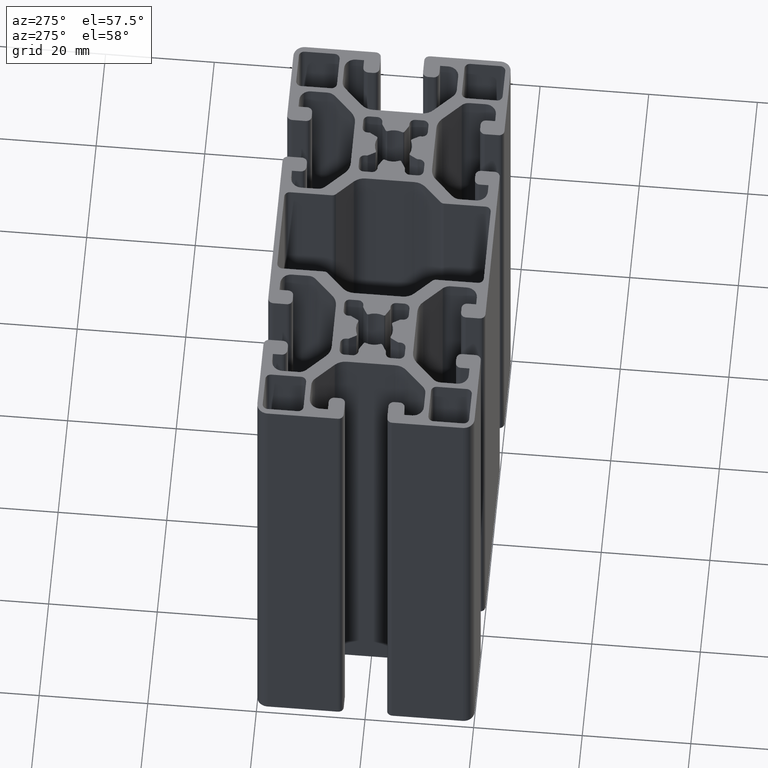
[diagram: clean part render]
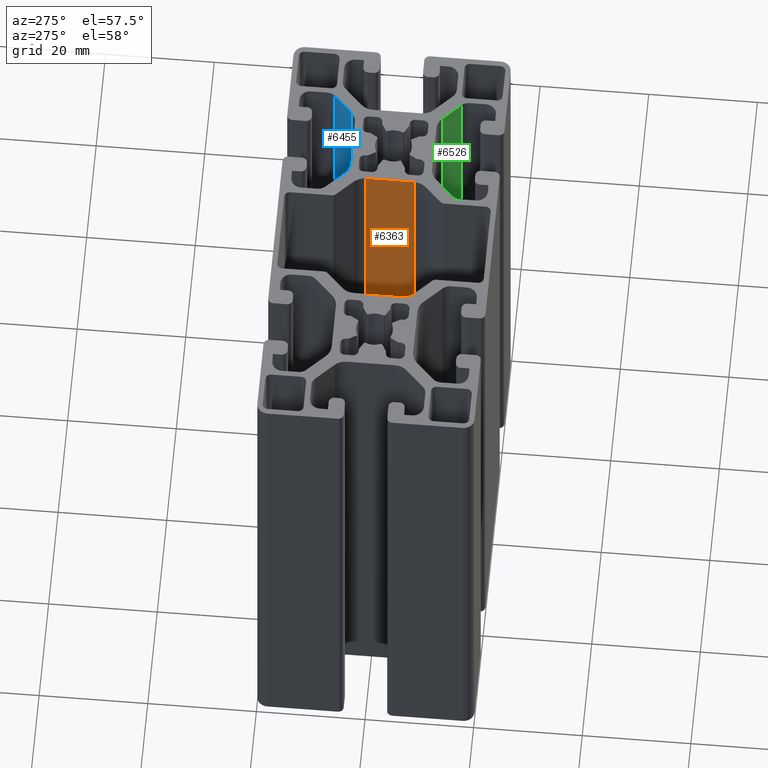
[diagram: same view with three faces highlighted in distinct colors, each labeled with its STEP entity id]
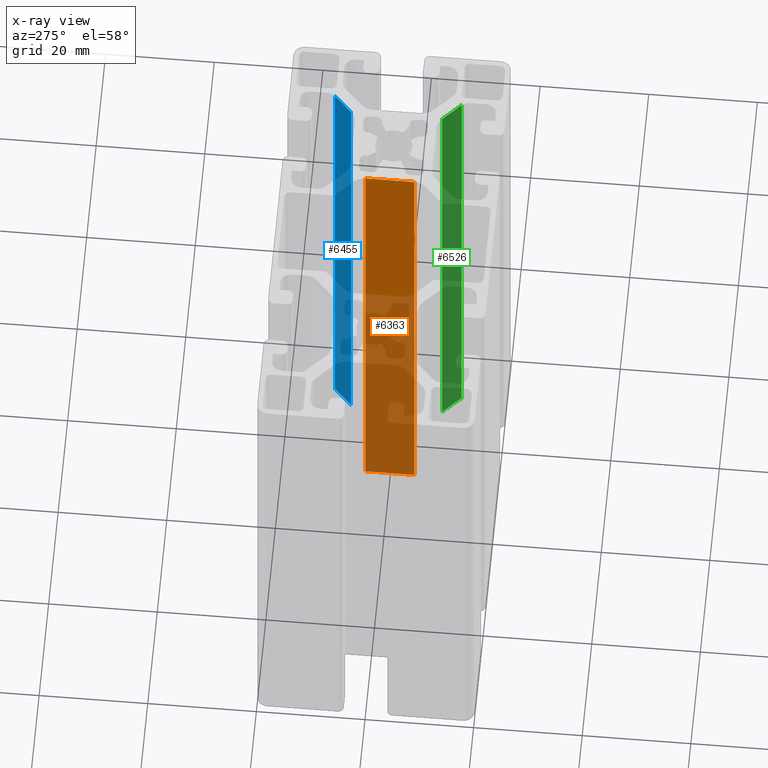
[diagram: x-ray of the same camera — body ghosted, the three highlighted faces saturated]
A machine part, auxiliary view with three faces highlighted in distinct colors.
The next image is the same camera in x-ray (body ghosted, the three faces saturated) — at least one of them is partly hidden behind the body in this view.
Their STEP definitions:

[orange] entity #6363 — the highlighted planar face has unit normal (1, 0, 0).
#543=FACE_OUTER_BOUND('',#877,.T.);
#877=EDGE_LOOP('',(#4235,#4236,#4237,#4238));
#1235=LINE('',#9424,#1895);
#1236=LINE('',#9427,#1896);
#1237=LINE('',#9429,#1897);
#1238=LINE('',#9430,#1898);
#1895=VECTOR('',#7421,100.);
#1896=VECTOR('',#7424,8.97918471982873);
#1897=VECTOR('',#7425,8.97918471982873);
#1898=VECTOR('',#7426,100.);
#2555=VERTEX_POINT('',#9420);
#2556=VERTEX_POINT('',#9422);
#2557=VERTEX_POINT('',#9426);
#2558=VERTEX_POINT('',#9428);
#3229=EDGE_CURVE('',#2556,#2555,#1235,.T.);
#3230=EDGE_CURVE('',#2555,#2557,#1236,.T.);
#3231=EDGE_CURVE('',#2558,#2556,#1237,.T.);
#3232=EDGE_CURVE('',#2558,#2557,#1238,.T.);
#4235=ORIENTED_EDGE('',*,*,#3230,.F.);
#4236=ORIENTED_EDGE('',*,*,#3229,.F.);
#4237=ORIENTED_EDGE('',*,*,#3231,.F.);
#4238=ORIENTED_EDGE('',*,*,#3232,.T.);
#6192=PLANE('',#6709);
#6363=ADVANCED_FACE('',(#543),#6192,.F.);
#6709=AXIS2_PLACEMENT_3D('',#9425,#7422,#7423);
#7421=DIRECTION('',(0.,0.,1.));
#7422=DIRECTION('center_axis',(1.,4.94576315898013E-16,0.));
#7423=DIRECTION('ref_axis',(0.,0.,-1.));
#7424=DIRECTION('',(4.94576315898013E-16,-1.,0.));
#7425=DIRECTION('',(-4.94576315898013E-16,1.,0.));
#7426=DIRECTION('',(0.,0.,1.));
#9420=CARTESIAN_POINT('',(12.5,4.48959235991437,100.));
#9422=CARTESIAN_POINT('',(12.5,4.48959235991437,0.));
#9424=CARTESIAN_POINT('',(12.5,4.48959235991437,0.));
#9425=CARTESIAN_POINT('Origin',(12.5,4.48959235991437,0.));
#9426=CARTESIAN_POINT('',(12.5,-4.48959235991437,100.));
#9427=CARTESIAN_POINT('',(12.5,2.24479617995719,100.));
#9428=CARTESIAN_POINT('',(12.5,-4.48959235991437,0.));
#9429=CARTESIAN_POINT('',(12.5,2.24479617995719,0.));
#9430=CARTESIAN_POINT('',(12.5,-4.48959235991437,0.));

[blue] entity #6455 — the highlighted planar face has unit normal (0.7071, -0.7071, 0).
#635=FACE_OUTER_BOUND('',#969,.T.);
#969=EDGE_LOOP('',(#4603,#4604,#4605,#4606));
#1424=LINE('',#9984,#2084);
#1425=LINE('',#9988,#2085);
#1426=LINE('',#9990,#2086);
#1427=LINE('',#9991,#2087);
#2084=VECTOR('',#7972,100.);
#2085=VECTOR('',#7977,4.67157287525383);
#2086=VECTOR('',#7978,100.);
#2087=VECTOR('',#7979,4.67157287525383);
#2745=VERTEX_POINT('',#9981);
#2746=VERTEX_POINT('',#9983);
#2747=VERTEX_POINT('',#9987);
#2748=VERTEX_POINT('',#9989);
#3507=EDGE_CURVE('',#2746,#2745,#1424,.T.);
#3509=EDGE_CURVE('',#2747,#2745,#1425,.T.);
#3510=EDGE_CURVE('',#2748,#2747,#1426,.T.);
#3511=EDGE_CURVE('',#2746,#2748,#1427,.T.);
#4603=ORIENTED_EDGE('',*,*,#3509,.F.);
#4604=ORIENTED_EDGE('',*,*,#3510,.F.);
#4605=ORIENTED_EDGE('',*,*,#3511,.F.);
#4606=ORIENTED_EDGE('',*,*,#3507,.T.);
#6239=PLANE('',#6891);
#6455=ADVANCED_FACE('',(#635),#6239,.F.);
#6891=AXIS2_PLACEMENT_3D('',#9986,#7975,#7976);
#7972=DIRECTION('',(0.,0.,1.));
#7975=DIRECTION('center_axis',(0.707106781186549,-0.707106781186546,0.));
#7976=DIRECTION('ref_axis',(0.,0.,-1.));
#7977=DIRECTION('',(-0.707106781186546,-0.707106781186549,0.));
#7978=DIRECTION('',(0.,0.,1.));
#7979=DIRECTION('',(0.707106781186546,0.707106781186549,0.));
#9981=CARTESIAN_POINT('',(26.610912703474,8.37867965644034,100.));
#9983=CARTESIAN_POINT('',(26.610912703474,8.37867965644034,0.));
#9984=CARTESIAN_POINT('',(26.610912703474,8.37867965644034,0.));
#9986=CARTESIAN_POINT('Origin',(29.9142135623731,11.6819805153395,0.));
#9987=CARTESIAN_POINT('',(29.9142135623731,11.6819805153395,100.));
#9988=CARTESIAN_POINT('',(19.515165042945,1.28293199591131,100.));
#9989=CARTESIAN_POINT('',(29.9142135623731,11.6819805153395,0.));
#9990=CARTESIAN_POINT('',(29.9142135623731,11.6819805153395,0.));
#9991=CARTESIAN_POINT('',(19.515165042945,1.28293199591131,0.));

[green] entity #6526 — the highlighted planar face has unit normal (0.7071, 0.7071, 0).
#706=FACE_OUTER_BOUND('',#1040,.T.);
#1040=EDGE_LOOP('',(#4887,#4888,#4889,#4890));
#1524=LINE('',#10279,#2184);
#1572=LINE('',#10419,#2232);
#1573=LINE('',#10422,#2233);
#1574=LINE('',#10423,#2234);
#2184=VECTOR('',#8262,100.);
#2232=VECTOR('',#8398,100.);
#2233=VECTOR('',#8403,4.67157287525381);
#2234=VECTOR('',#8404,4.67157287525381);
#2844=VERTEX_POINT('',#10273);
#2846=VERTEX_POINT('',#10277);
#2893=VERTEX_POINT('',#10416);
#2894=VERTEX_POINT('',#10418);
#3654=EDGE_CURVE('',#2846,#2844,#1524,.T.);
#3723=EDGE_CURVE('',#2894,#2893,#1572,.T.);
#3725=EDGE_CURVE('',#2844,#2893,#1573,.T.);
#3726=EDGE_CURVE('',#2894,#2846,#1574,.T.);
#4887=ORIENTED_EDGE('',*,*,#3725,.F.);
#4888=ORIENTED_EDGE('',*,*,#3654,.F.);
#4889=ORIENTED_EDGE('',*,*,#3726,.F.);
#4890=ORIENTED_EDGE('',*,*,#3723,.T.);
#6276=PLANE('',#7030);
#6526=ADVANCED_FACE('',(#706),#6276,.F.);
#7030=AXIS2_PLACEMENT_3D('',#10421,#8401,#8402);
#8262=DIRECTION('',(0.,0.,1.));
#8398=DIRECTION('',(0.,0.,1.));
#8401=DIRECTION('center_axis',(0.707106781186547,0.707106781186548,0.));
#8402=DIRECTION('ref_axis',(0.,0.,-1.));
#8403=DIRECTION('',(0.707106781186548,-0.707106781186547,0.));
#8404=DIRECTION('',(-0.707106781186548,0.707106781186547,0.));
#10273=CARTESIAN_POINT('',(26.610912703474,-8.37867965644036,100.));
#10277=CARTESIAN_POINT('',(26.610912703474,-8.37867965644036,0.));
#10279=CARTESIAN_POINT('',(26.610912703474,-8.37867965644036,0.));
#10416=CARTESIAN_POINT('',(29.9142135623731,-11.6819805153395,100.));
#10418=CARTESIAN_POINT('',(29.9142135623731,-11.6819805153395,0.));
#10419=CARTESIAN_POINT('',(29.9142135623731,-11.6819805153395,0.));
#10421=CARTESIAN_POINT('Origin',(26.610912703474,-8.37867965644036,0.));
#10422=CARTESIAN_POINT('',(17.8635146134954,0.368718433538229,100.));
#10423=CARTESIAN_POINT('',(17.8635146134954,0.368718433538229,0.));